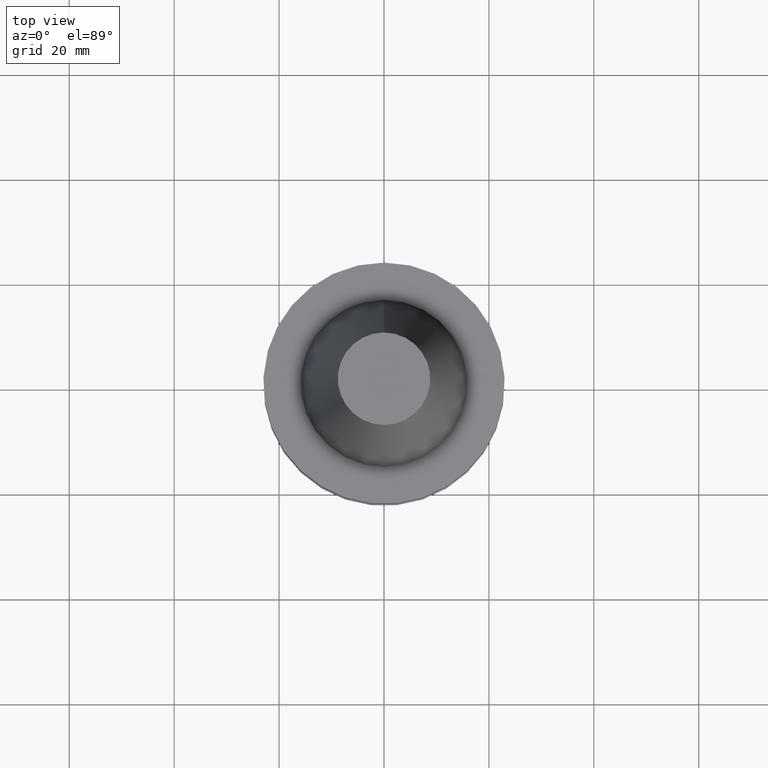
[diagram: clean part render]
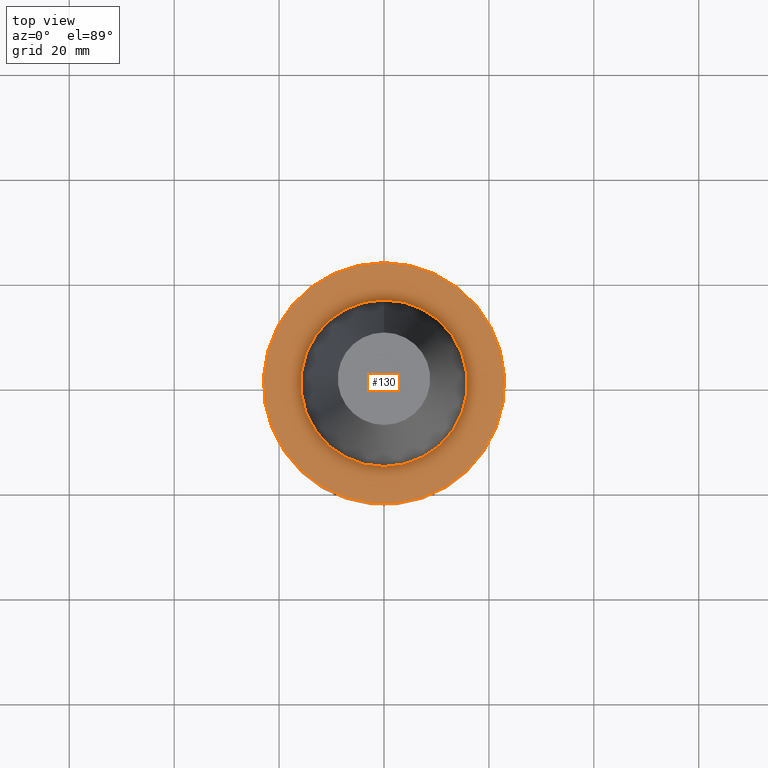
[diagram: same view with one face highlighted and labeled with its STEP entity id]
A machine part, top view. The second image highlights one B-rep face of the part: STEP entity #130.
In plain terms, the highlighted planar face has unit normal (-0, -0, 1).
Its self-contained STEP definition (entity closure, byte-faithful):
#122=EDGE_CURVE('Unnamed[1]',#274,#274,#275,.T.);
#130=ADVANCED_FACE('Unnamed[1]',(#286,#287),#288,.T.);
#163=EDGE_CURVE('Unnamed[1]',#338,#338,#339,.T.);
#274=VERTEX_POINT('',#467);
#275=CIRCLE('',#468,15.875);
#286=FACE_OUTER_BOUND('',#482,.T.);
#287=FACE_BOUND('',#483,.T.);
#288=PLANE('',#484);
#338=VERTEX_POINT('',#547);
#339=CIRCLE('',#548,23.0);
#467=CARTESIAN_POINT('',(6.12323399573675E-017,15.875,-0.999999999999998));
#468=AXIS2_PLACEMENT_3D('',#661,#662,#663);
#482=EDGE_LOOP('',(#674));
#483=EDGE_LOOP('',(#675));
#484=AXIS2_PLACEMENT_3D('',#676,#677,#678);
#547=CARTESIAN_POINT('',(6.12323399573674E-017,23.0,-0.999999999999997));
#548=AXIS2_PLACEMENT_3D('',#734,#735,#736);
#661=CARTESIAN_POINT('',(6.12323399573677E-017,1.22464679914735E-016,-1.0));
#662=DIRECTION('',(6.12323399573677E-017,1.22464679914735E-016,-1.0));
#663=DIRECTION('',(-1.23259516440783E-032,1.0,1.22464679914735E-016));
#674=ORIENTED_EDGE('',*,*,#163,.F.);
#675=ORIENTED_EDGE('',*,*,#122,.T.);
#676=CARTESIAN_POINT('',(6.12323399573674E-017,19.4375,-0.999999999999998));
#677=DIRECTION('',(-6.12323399573677E-017,-1.22464679914735E-016,1.0));
#678=DIRECTION('',(1.23259516440783E-032,-1.0,-1.22464679914735E-016));
#734=CARTESIAN_POINT('',(6.12323399573677E-017,1.22464679914735E-016,-1.0));
#735=DIRECTION('',(6.12323399573677E-017,1.22464679914735E-016,-1.0));
#736=DIRECTION('',(-1.23259516440783E-032,1.0,1.22464679914735E-016));